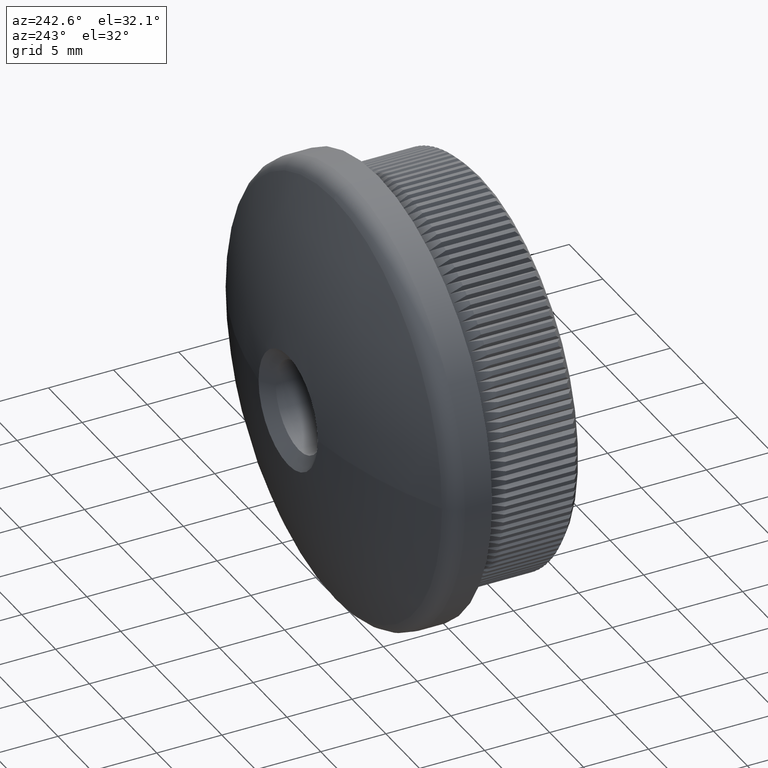
[diagram: clean part render]
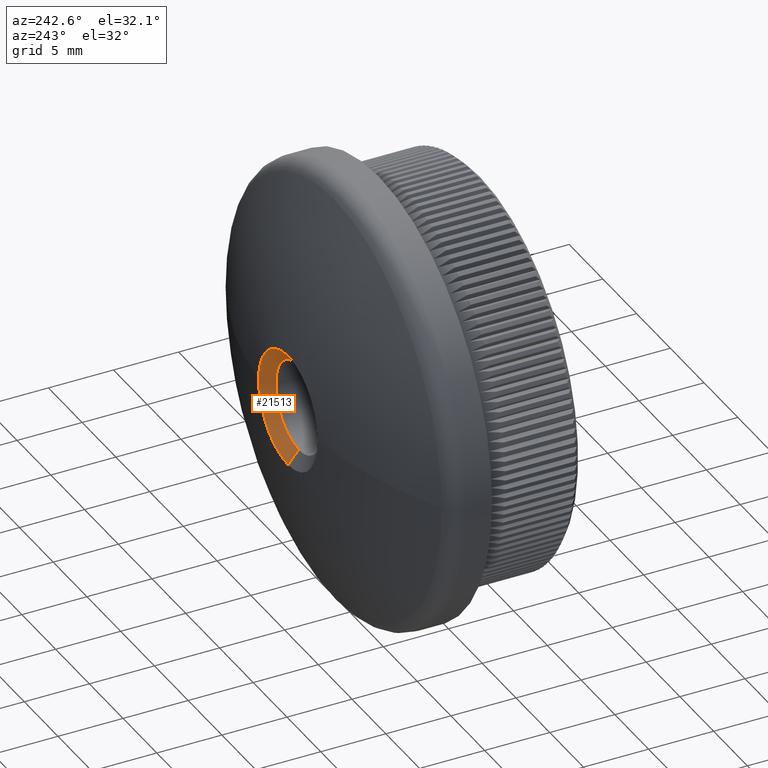
[diagram: same view with one face highlighted and labeled with its STEP entity id]
A machine part, auxiliary view. The second image highlights one B-rep face of the part: STEP entity #21513.
In plain terms, the highlighted conical surface has half-angle 50.434 deg.
Its self-contained STEP definition (entity closure, byte-faithful):
#5 = VERTEX_POINT ( 'NONE', #8307 ) ;
#371 = ORIENTED_EDGE ( 'NONE', *, *, #9487, .F. ) ;
#993 = CIRCLE ( 'NONE', #20299, 4.380727386532452500 ) ;
#3445 = DIRECTION ( 'NONE',  ( -0.0000000000000000000, -1.000000000000000000, -0.0000000000000000000 ) ) ;
#3631 = CARTESIAN_POINT ( 'NONE',  ( 4.163799117100995600E-016, 13.92138306863526700, 3.399999999999995500 ) ) ;
#3897 = EDGE_CURVE ( 'NONE', #8234, #5, #17074, .T. ) ;
#4726 = CARTESIAN_POINT ( 'NONE',  ( 0.0000000000000000000, 13.92138306863526700, 0.0000000000000000000 ) ) ;
#4807 = VECTOR ( 'NONE', #21653, 999.9999999999998900 ) ;
#6095 = CARTESIAN_POINT ( 'NONE',  ( 0.0000000000000000000, 13.92138306863526700, 3.399999999999995500 ) ) ;
#6461 = CONICAL_SURFACE ( 'NONE', #11231, 3.399999999999995500, 0.8802470502110862900 ) ;
#6604 = DIRECTION ( 'NONE',  ( 0.0000000000000000000, 0.0000000000000000000, 1.000000000000000000 ) ) ;
#7067 = ORIENTED_EDGE ( 'NONE', *, *, #20412, .T. ) ;
#7401 = CARTESIAN_POINT ( 'NONE',  ( 4.163799117100994600E-016, 13.92138306863526700, -3.399999999999995500 ) ) ;
#7405 = CARTESIAN_POINT ( 'NONE',  ( 0.0000000000000000000, 14.73171883667769000, 0.0000000000000000000 ) ) ;
#7837 = ORIENTED_EDGE ( 'NONE', *, *, #3897, .F. ) ;
#8234 = VERTEX_POINT ( 'NONE', #24373 ) ;
#8307 = CARTESIAN_POINT ( 'NONE',  ( 5.364843771854096600E-016, 14.73171883667769000, -4.380727386532436500 ) ) ;
#9487 = EDGE_CURVE ( 'NONE', #14064, #8234, #13469, .T. ) ;
#9661 = DIRECTION ( 'NONE',  ( 0.0000000000000000000, 0.0000000000000000000, -1.000000000000000000 ) ) ;
#10001 = VERTEX_POINT ( 'NONE', #16718 ) ;
#10503 = CARTESIAN_POINT ( 'NONE',  ( 0.0000000000000000000, 14.73171883667769000, 0.0000000000000000000 ) ) ;
#11231 = AXIS2_PLACEMENT_3D ( 'NONE', #4726, #16998, #6604 ) ;
#11252 = CIRCLE ( 'NONE', #17152, 4.380727386532452500 ) ;
#12965 = VECTOR ( 'NONE', #16381, 999.9999999999998900 ) ;
#13469 = CIRCLE ( 'NONE', #21041, 3.399999999999995500 ) ;
#14064 = VERTEX_POINT ( 'NONE', #3631 ) ;
#14662 = DIRECTION ( 'NONE',  ( 0.0000000000000000000, 1.000000000000000000, 0.0000000000000000000 ) ) ;
#16381 = DIRECTION ( 'NONE',  ( 0.0000000000000000000, 0.6369607135539128200, 0.7708962637014725700 ) ) ;
#16718 = CARTESIAN_POINT ( 'NONE',  ( 4.380727386532452500, 14.73171883667769000, 0.0000000000000000000 ) ) ;
#16753 = DIRECTION ( 'NONE',  ( 0.0000000000000000000, 0.0000000000000000000, 1.000000000000000000 ) ) ;
#16813 = DIRECTION ( 'NONE',  ( -0.0000000000000000000, -1.000000000000000000, -0.0000000000000000000 ) ) ;
#16998 = DIRECTION ( 'NONE',  ( 0.0000000000000000000, 1.000000000000000000, 0.0000000000000000000 ) ) ;
#17074 = LINE ( 'NONE', #7401, #4807 ) ;
#17152 = AXIS2_PLACEMENT_3D ( 'NONE', #10503, #16813, #18920 ) ;
#17462 = ORIENTED_EDGE ( 'NONE', *, *, #19056, .F. ) ;
#18720 = FACE_OUTER_BOUND ( 'NONE', #20941, .T. ) ;
#18920 = DIRECTION ( 'NONE',  ( 0.0000000000000000000, 0.0000000000000000000, -1.000000000000000000 ) ) ;
#19056 = EDGE_CURVE ( 'NONE', #5, #10001, #993, .T. ) ;
#19271 = ORIENTED_EDGE ( 'NONE', *, *, #25053, .F. ) ;
#20299 = AXIS2_PLACEMENT_3D ( 'NONE', #7405, #3445, #9661 ) ;
#20329 = LINE ( 'NONE', #6095, #12965 ) ;
#20412 = EDGE_CURVE ( 'NONE', #14064, #24358, #20329, .T. ) ;
#20941 = EDGE_LOOP ( 'NONE', ( #7837, #371, #7067, #19271, #17462 ) ) ;
#21041 = AXIS2_PLACEMENT_3D ( 'NONE', #24847, #14662, #16753 ) ;
#21513 = ADVANCED_FACE ( 'NONE', ( #18720 ), #6461, .F. ) ;
#21653 = DIRECTION ( 'NONE',  ( 9.440756418166621300E-017, 0.6369607135539128200, -0.7708962637014725700 ) ) ;
#24358 = VERTEX_POINT ( 'NONE', #25853 ) ;
#24373 = CARTESIAN_POINT ( 'NONE',  ( 0.0000000000000000000, 13.92138306863526700, -3.399999999999995500 ) ) ;
#24847 = CARTESIAN_POINT ( 'NONE',  ( 0.0000000000000000000, 13.92138306863526700, 0.0000000000000000000 ) ) ;
#25053 = EDGE_CURVE ( 'NONE', #10001, #24358, #11252, .T. ) ;
#25853 = CARTESIAN_POINT ( 'NONE',  ( 0.0000000000000000000, 14.73171883667769000, 4.380727386532436500 ) ) ;